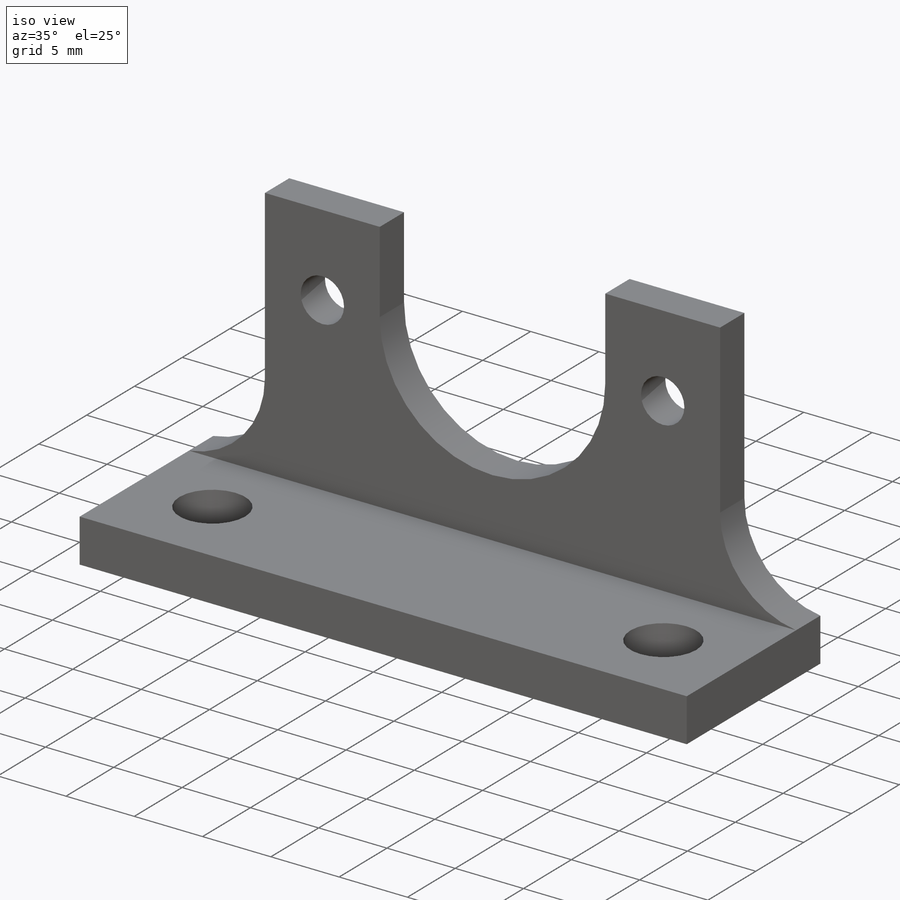
[diagram: iso view]
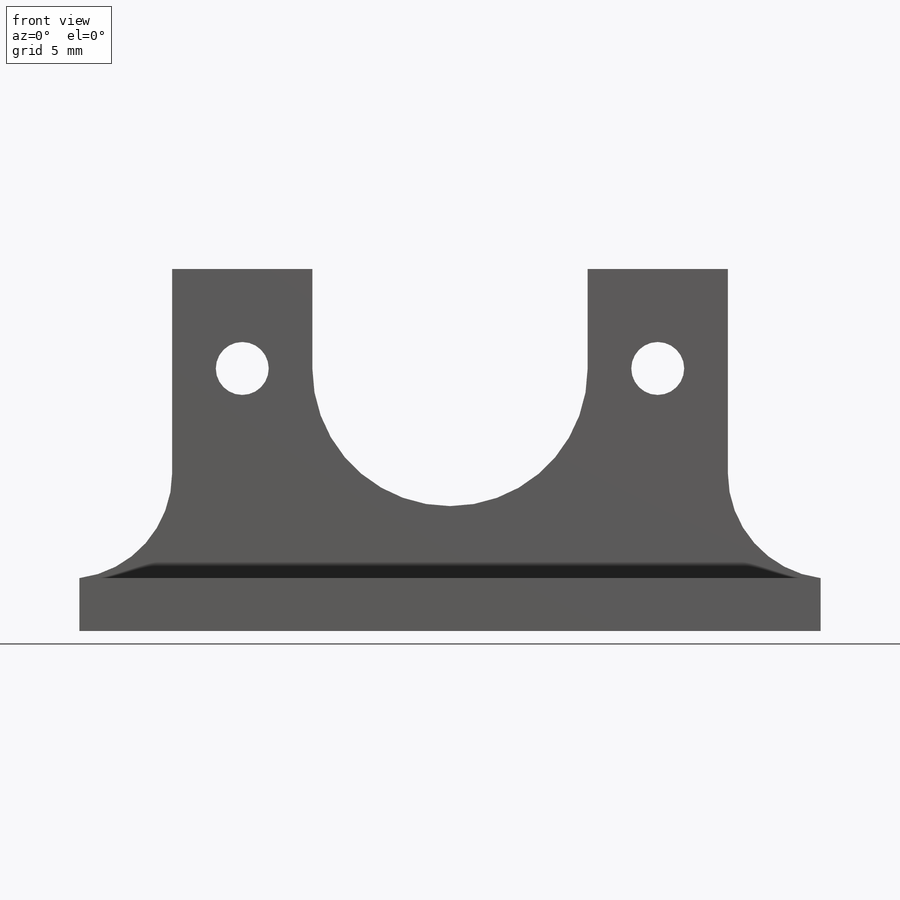
[diagram: front view]
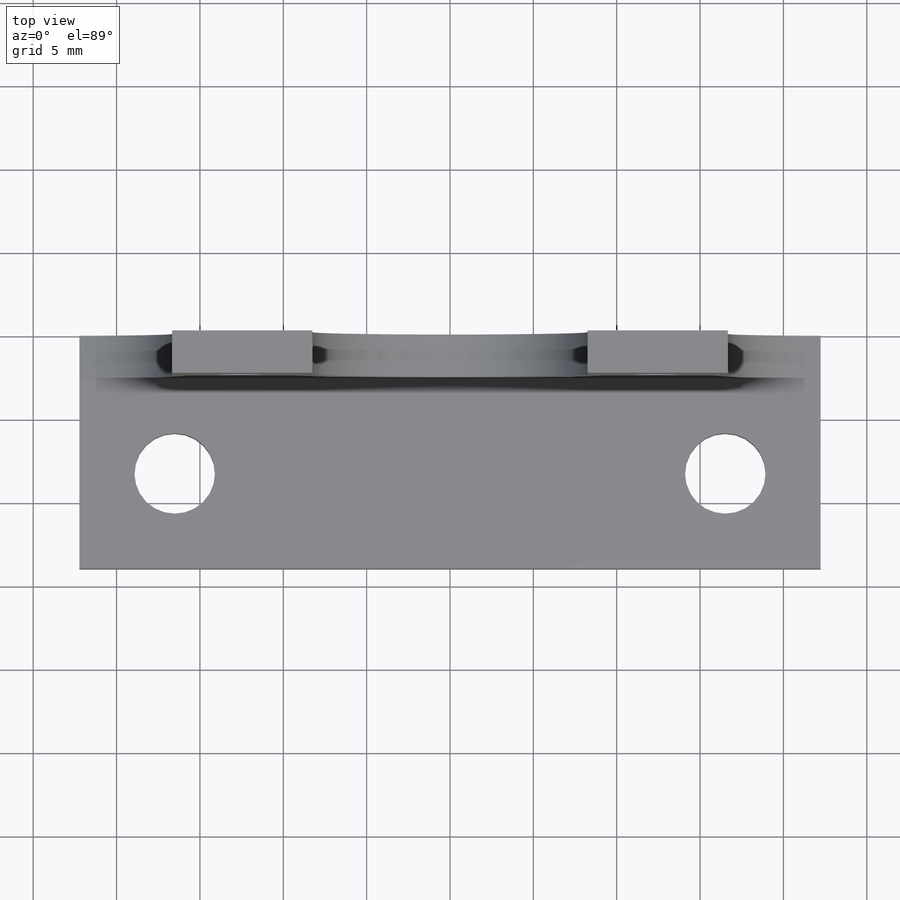
[diagram: top view]
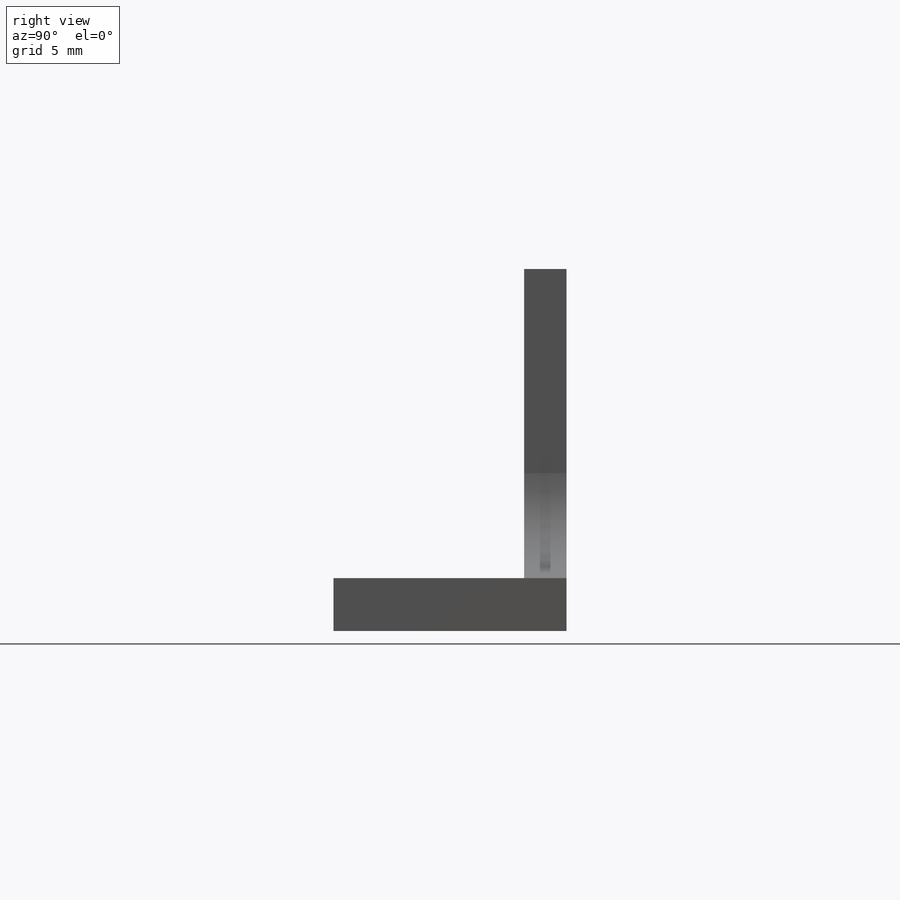
[diagram: right view]
SOLIDWORKS PART (.sldprt)
format: sldprt  version: not decoded by parser v0  size: 211,968 bytes
history: native  units: mm
features: sketch x3, extrude x2, material x1, cut_extrude x1, fillet x1 (+13 scaffold rows collapsed)
feature tree (21):
  scaffold x13  (default folders/planes/origin — collapsed)
  material  "Material <not specified>"
  sketch  "Sketch1"  dims[c1.D1=3.175mm c1.D4=~7.569231mm c1.D3=39.624mm c2.D4=16.51mm c2.D2=24.9174mm c2.D3=38.1mm c2.D5=15.748mm c2.D6=33.3248mm]
  extrude  "Boss-Extrude1"  Depth=2.54mm
  sketch  "Sketch2"  dims[D1=3.175mm D2=44.45mm D3=22.225mm]
  extrude  "Boss-Extrude2"  Depth=11.43mm
  sketch  "Sketch3"  dims[c1.D2=4.826mm c1.D3=4.8514mm c1.D4=4.826mm c1.D1=8.255mm c2.D3=16.51mm]
  cut_extrude  "Cut-Extrude1"  [1 undecoded]
  fillet  "Fillet1"  Radius=6.35mm
decode coverage: 6 of 7 modeling features carry decoded parameters
note: ~ marks probable driven/reference dimensions
note: 1 parameter value undecoded
note: suppression state not decoded; provenance and decode notes live in map.json
